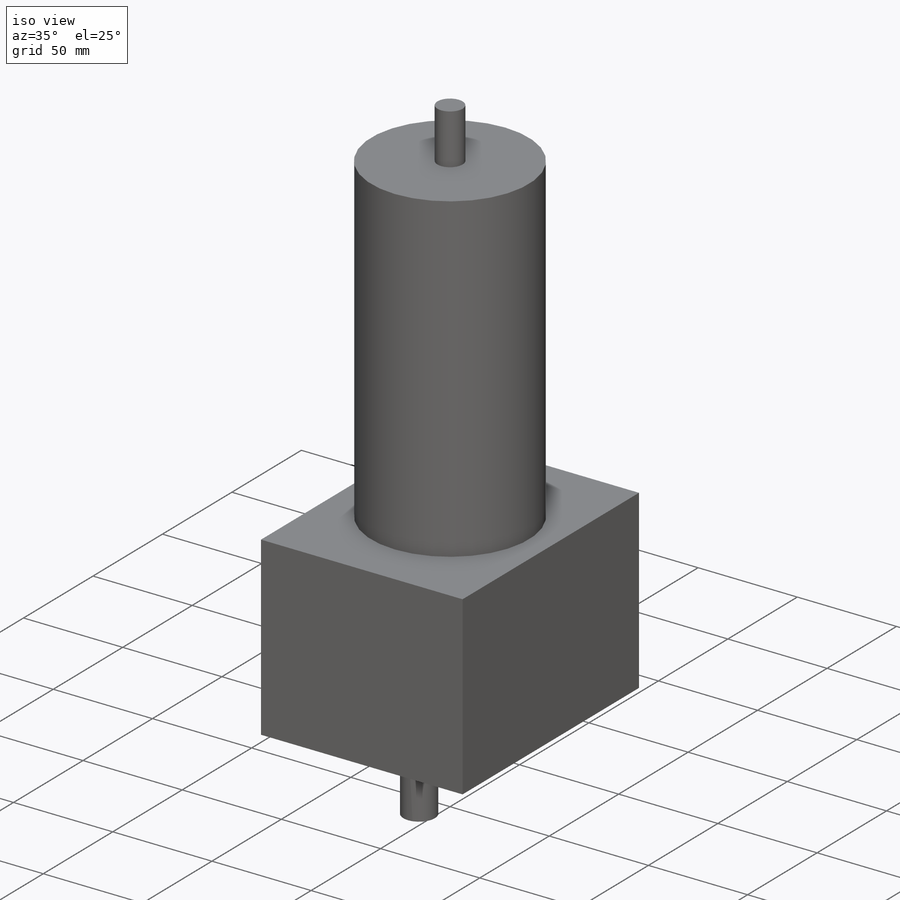
[diagram: iso view]
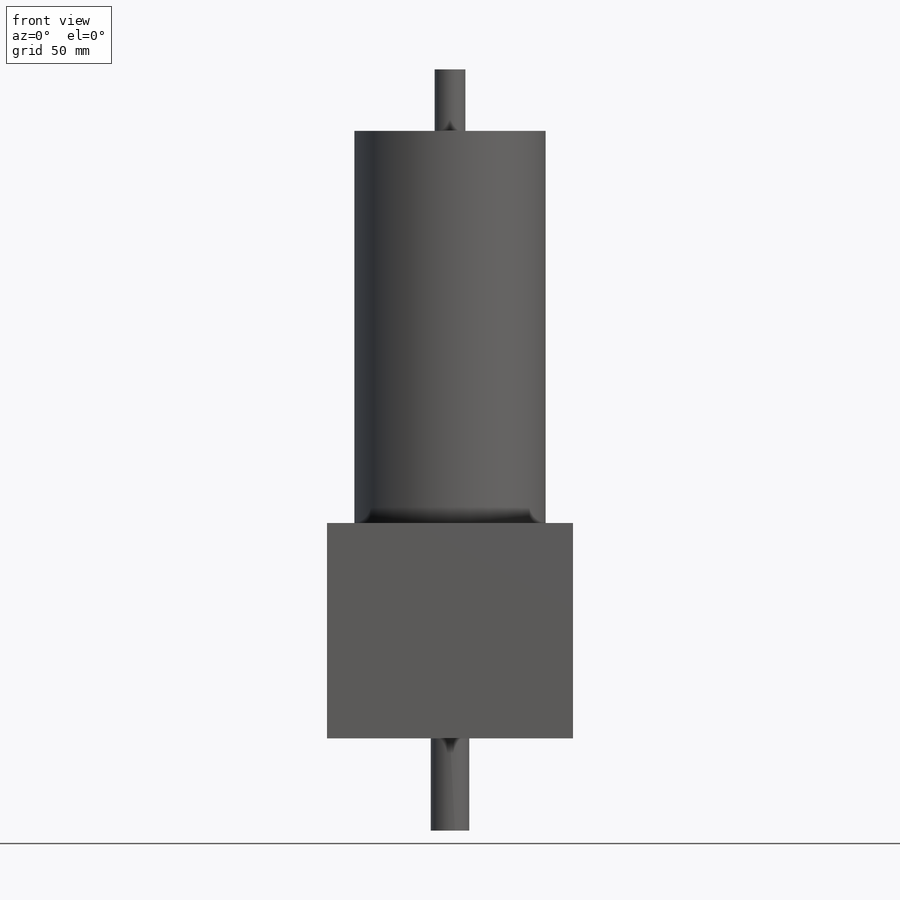
[diagram: front view]
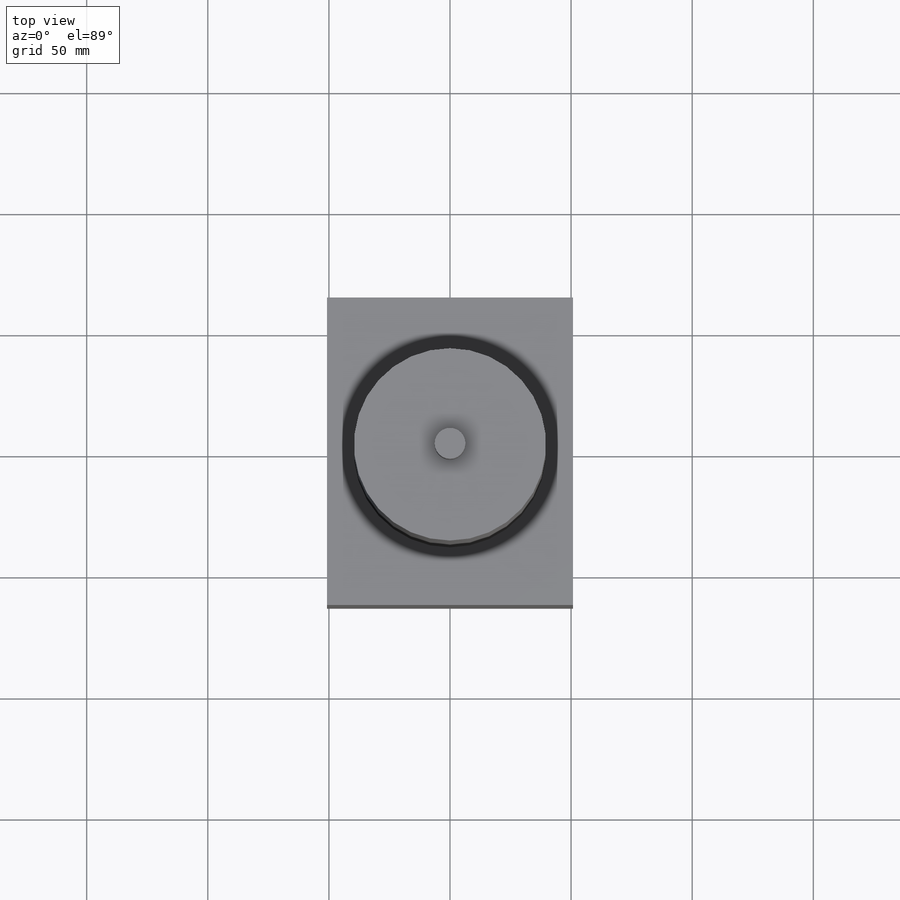
[diagram: top view]
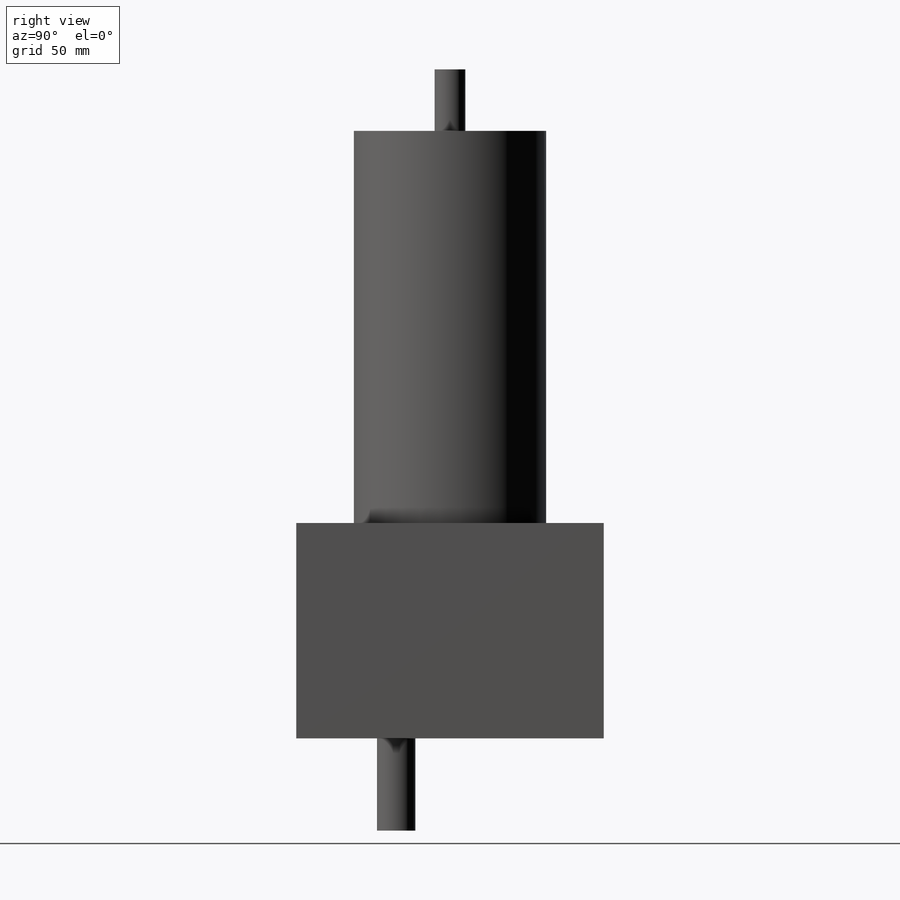
[diagram: right view]
SOLIDWORKS PART (.sldprt)
format: sldprt  version: not decoded by parser v0  size: 173,056 bytes
history: native  units: mm
features: sketch x5, extrude x4, material x1, cut_extrude x1 (+13 scaffold rows collapsed)
feature tree (24):
  scaffold x13  (default folders/planes/origin — collapsed)
  material  "Material <not specified>"
  sketch  "Sketch1"  dims[D3=79.375mm D1=127.0mm D2=101.6mm]
  extrude  "Boss-Extrude2"  Depth=88.9mm
  sketch  "Sketch3"  dims[D1=79.375mm]
  extrude  "Boss-Extrude3"  Depth=161.925mm
  sketch  "Sketch4"  dims[D1=12.7mm]
  extrude  "Boss-Extrude4"  Depth=25.4mm
  sketch  "Sketch5"  dims[D1=15.875mm D2=41.275mm]
  extrude  "Boss-Extrude5"  Depth=38.1mm
  sketch  "Sketch6"  dims[D4=7.9375mm D5=7.9375mm D8=7.9375mm D1=7.9375mm D2=7.9375mm D3=25.4mm D6=25.4mm D7=~13.325938mm]
  cut_extrude  "Cut-Extrude1"  Depth=25.4mm
decode coverage: 10 of 10 modeling features carry decoded parameters
note: ~ marks probable driven/reference dimensions
note: suppression state not decoded; provenance and decode notes live in map.json
